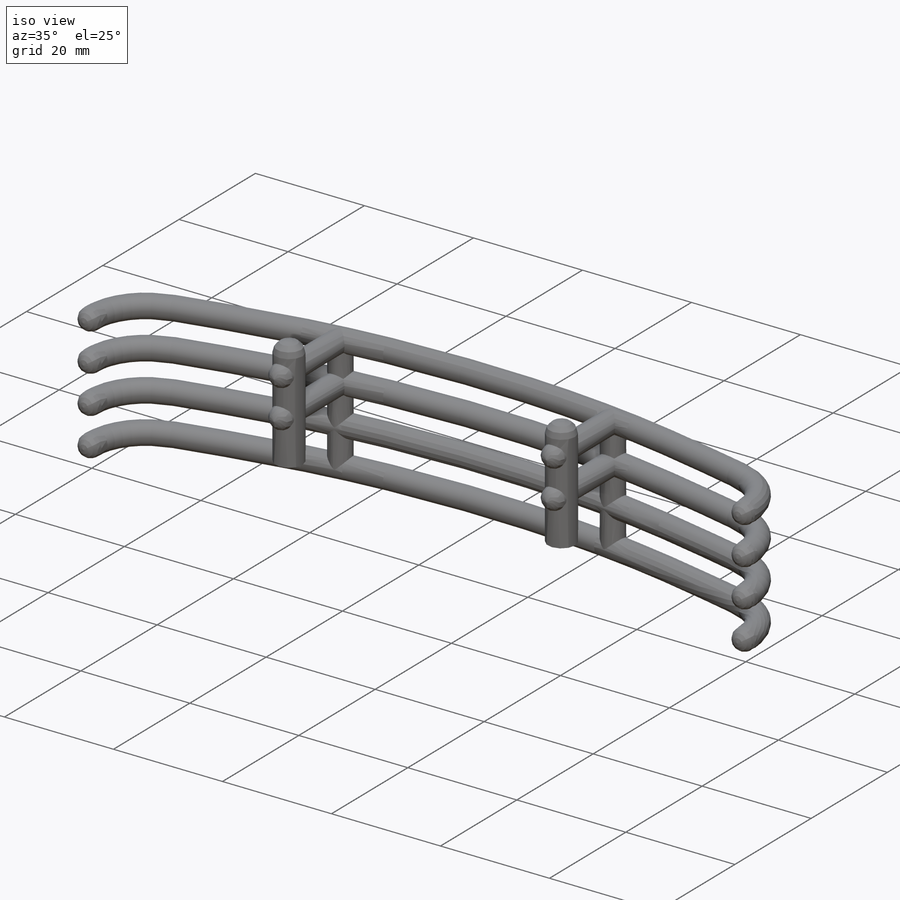
[diagram: iso view]
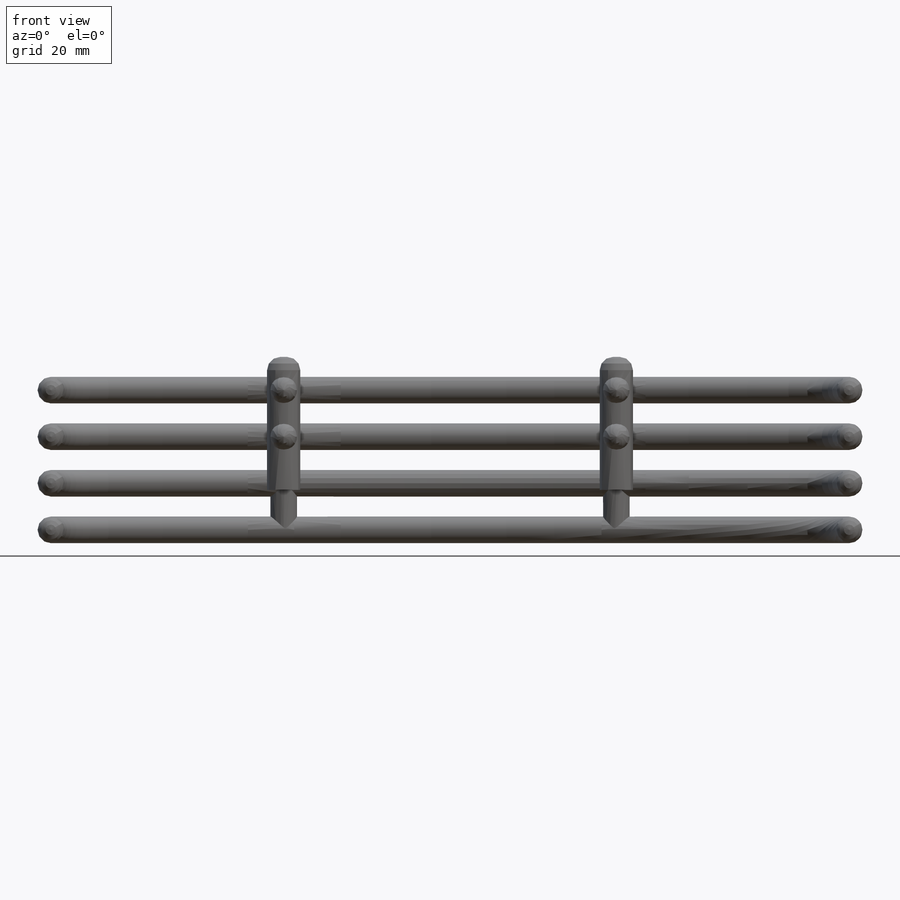
[diagram: front view]
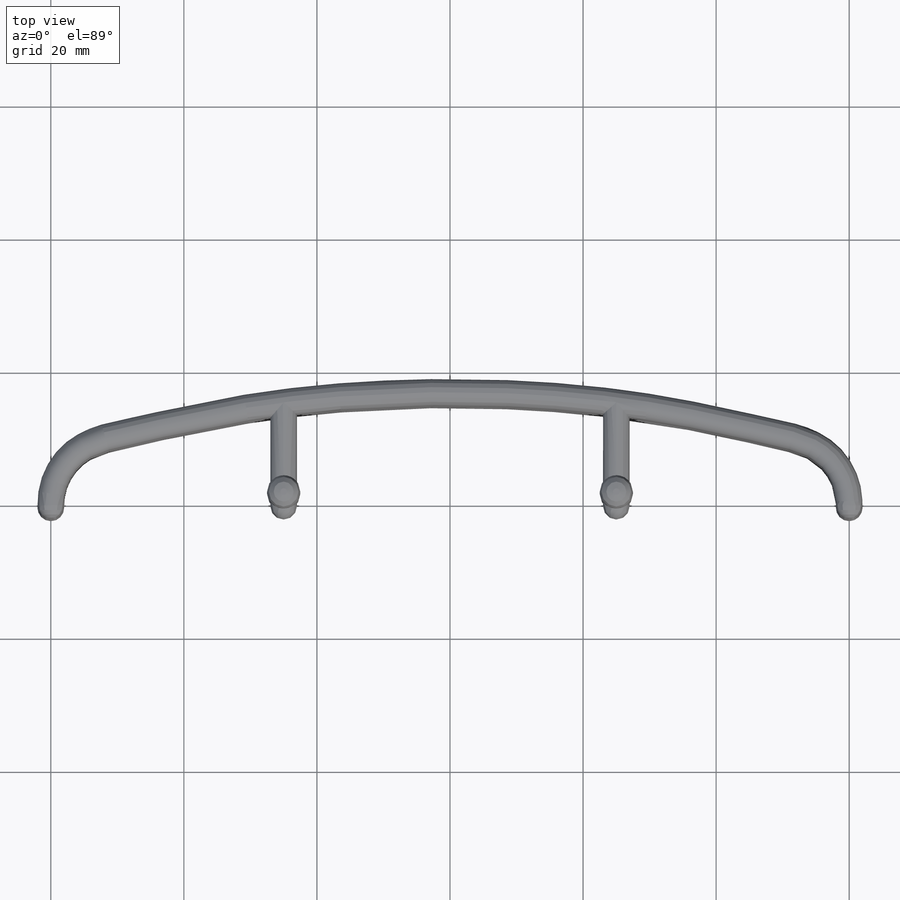
[diagram: top view]
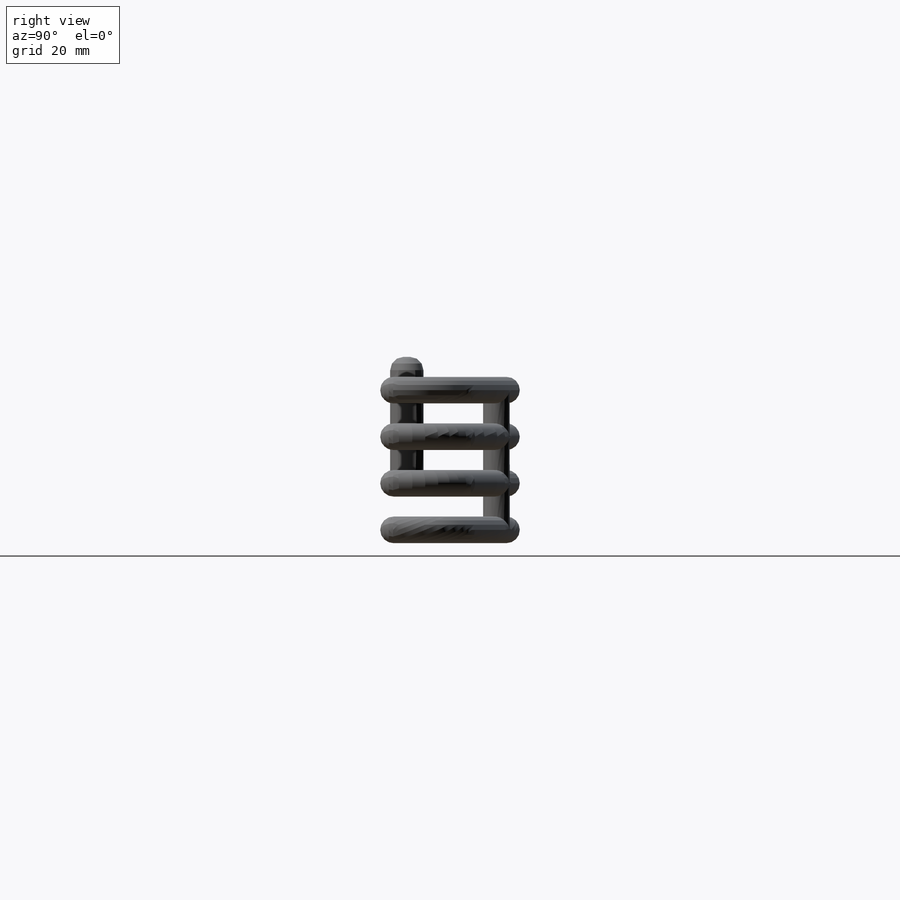
[diagram: right view]
SOLIDWORKS PART (.sldprt)
format: sldprt  version: not decoded by parser v0  size: 465,920 bytes
history: native  units: mm
features: sketch x5, extrude x3, plane x2, sweep x2, dome x2, material x1, pattern_linear x1, fillet x1 (+13 scaffold rows collapsed)
feature tree (30):
  scaffold x13  (default folders/planes/origin — collapsed)
  material  "Material <not specified>"
  sketch  "Sketch1"  dims[D2=200.0mm D3=10.0mm D1=100.0mm D4=17.0mm]
  plane  "Plane1"
  sketch  "Sketch2"  dims[D1=4.0mm]
  sweep  "Sweep1"
  dome  "Dome1"
  dome  "Dome2"
  pattern_linear  "LPattern1"  Count1=4 Count2=1 Spacing1=7mm Spacing2=10mm
  sketch  "Sketch3"  dims[D1=4.0mm D2=50.0mm D3=0.04mm]
  extrude  "Boss-Extrude1"  Depth=21mm
  sketch  "Sketch4"  dims[D1=5.0mm D2=15.0mm D3=50.0mm]
  extrude  "Boss-Extrude2"  Depth=20mm
  sweep  "Axis2"
  plane  "Plane2"
  sketch  "Sketch5"  dims[D1=4.0mm D2=14.0mm D3=7.0mm]
  extrude  "Boss-Extrude3"  Depth=4mm
  fillet  "Fillet1"  Radius=2mm
decode coverage: 10 of 14 modeling features carry decoded parameters
note: suppression state not decoded; provenance and decode notes live in map.json
